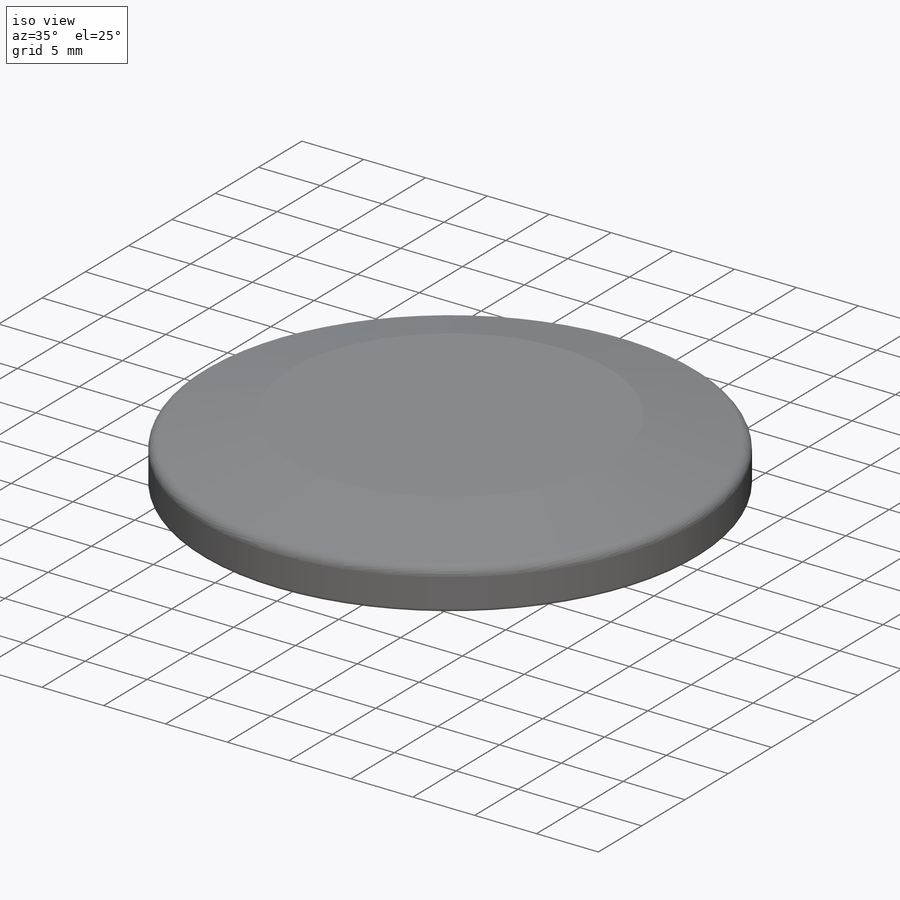
[diagram: iso view]
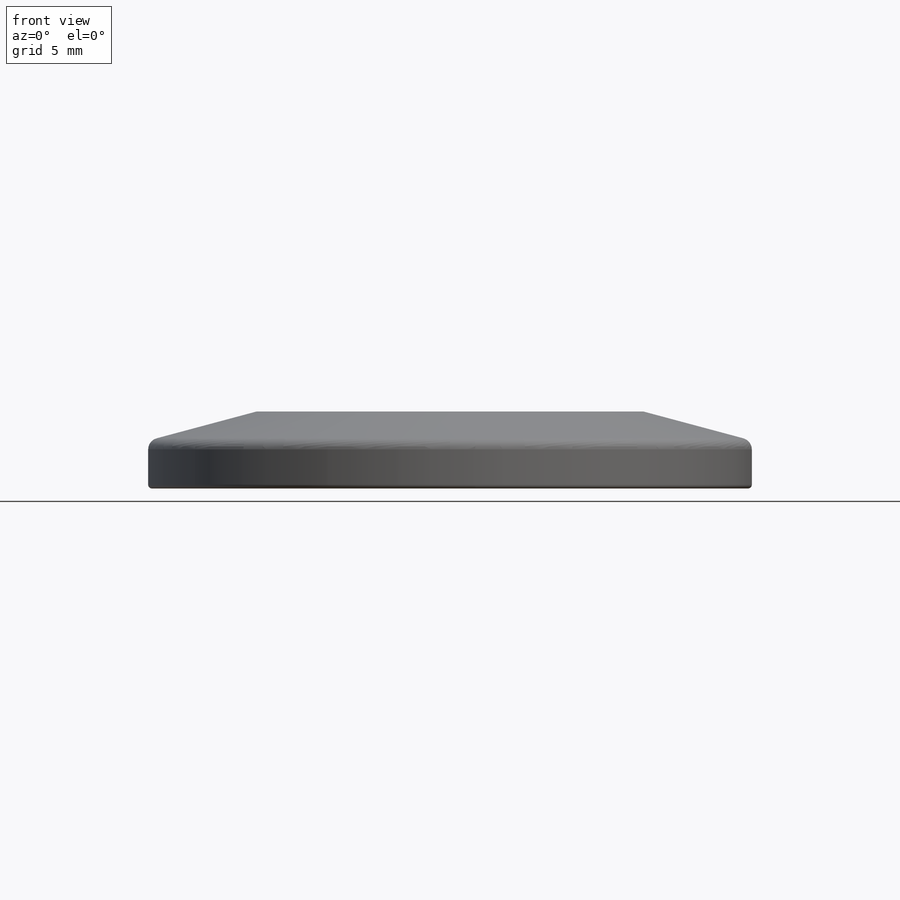
[diagram: front view]
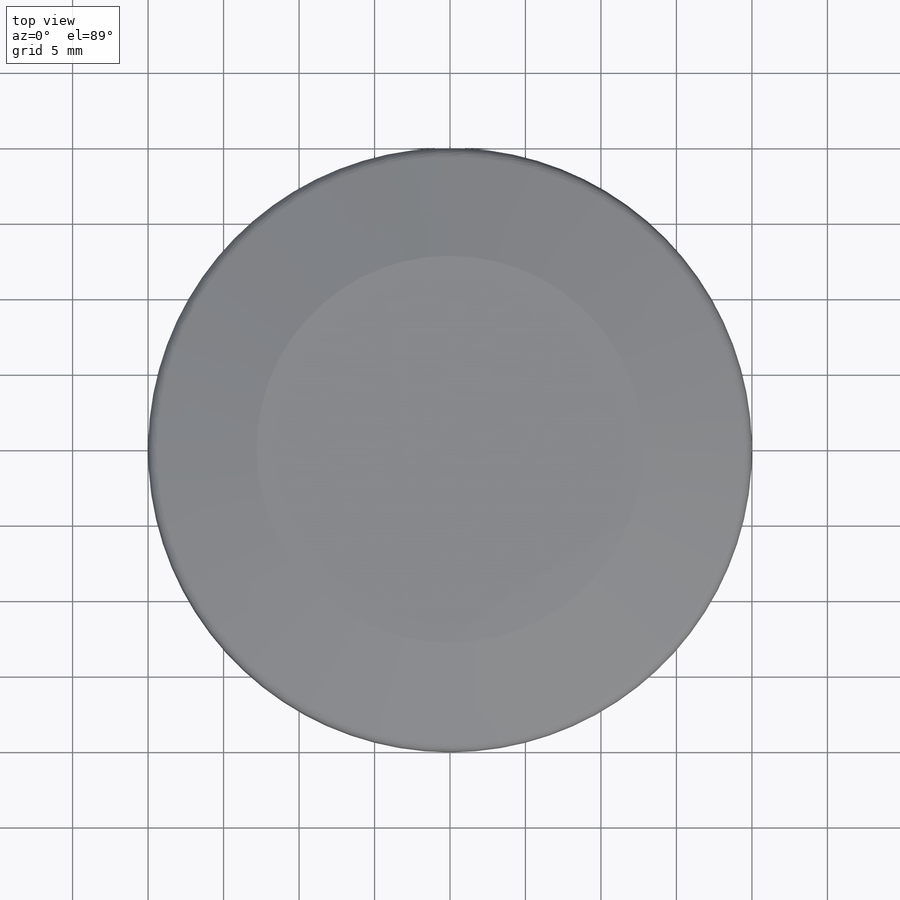
[diagram: top view]
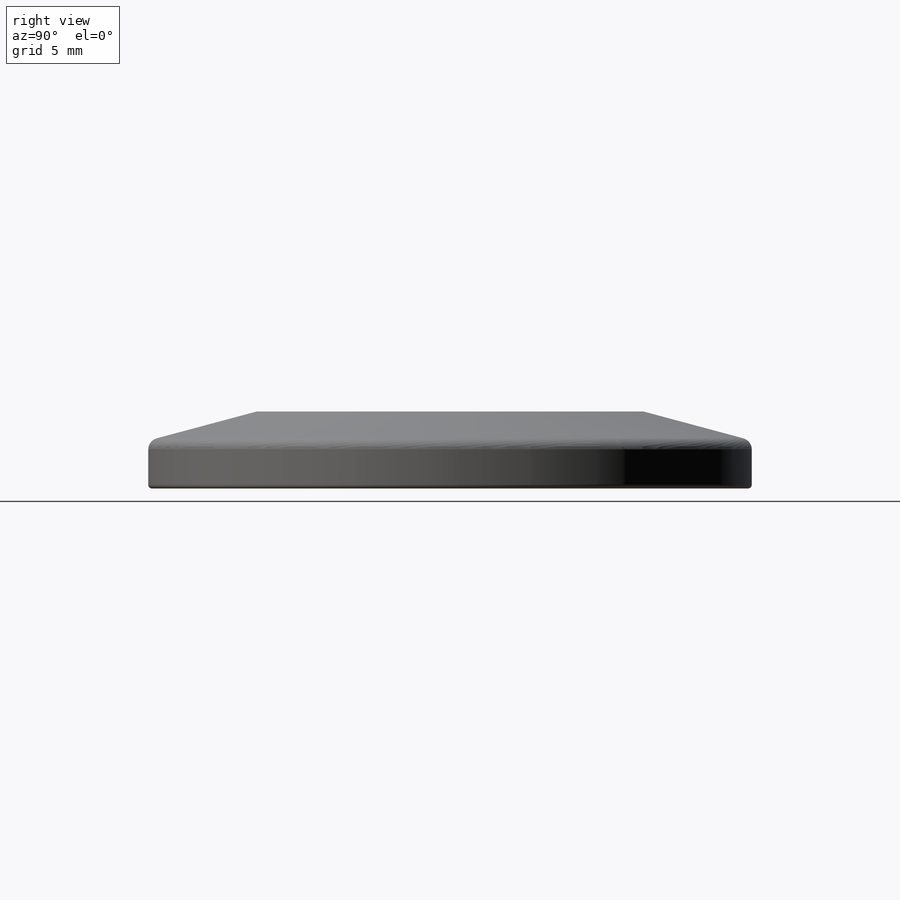
[diagram: right view]
SOLIDWORKS PART (.sldprt)
format: sldprt  version: not decoded by parser v0  size: 380,416 bytes
history: native  units: mm
features: plane x3, sketch x2, revolve x2, fillet x2, material x1 (+14 scaffold rows collapsed)
feature tree (24):
  scaffold x14  (default folders/planes/origin — collapsed)
  material  "AISI 304"
  sketch  "Sketch1"  dims[c1.D1=21.95mm c1.Flange ID=26.25mm c1.D3=12.8mm c1.Flange OD=40.0mm c1.D5=3.175mm c1.D6=3.5mm c1.Flange Height=5.1mm c1.Flange to Center=60.7mm c1.D9=2.5mm c1.Tube OD=51.0mm c2.D1=2.0mm c3.D1=75.0deg c3.D2=~25.631604mm c3.D3=11.4mm c4.D3=20.0deg c5.D3=11.4mm]
  revolve  "Flange"  Angle=360deg
  sketch  "Sketch2"  dims[ID=19.75mm]
  revolve  "Blank Insert"  Angle=360deg
  plane  "Plane1"  Offset=1.905mm
  plane  "Plane2"
  plane  "Plane3"
  fillet  "Fillet1"  Radius=0.762mm
  fillet  "Fillet2"  Radius=0.254mm
decode coverage: 6 of 6 modeling features carry decoded parameters
note: ~ marks probable driven/reference dimensions
note: suppression state not decoded; provenance and decode notes live in map.json
